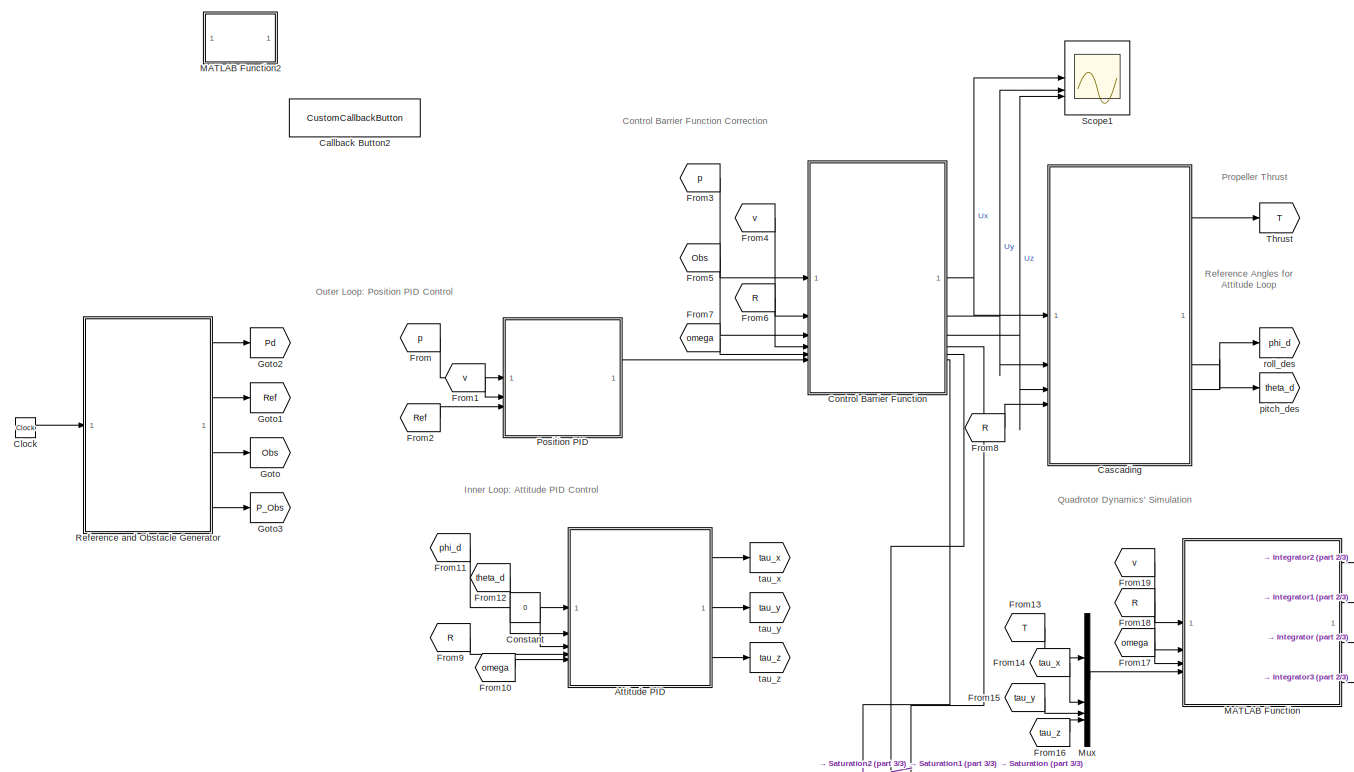
[diagram: root canvas - part 1/3, center side, full height]
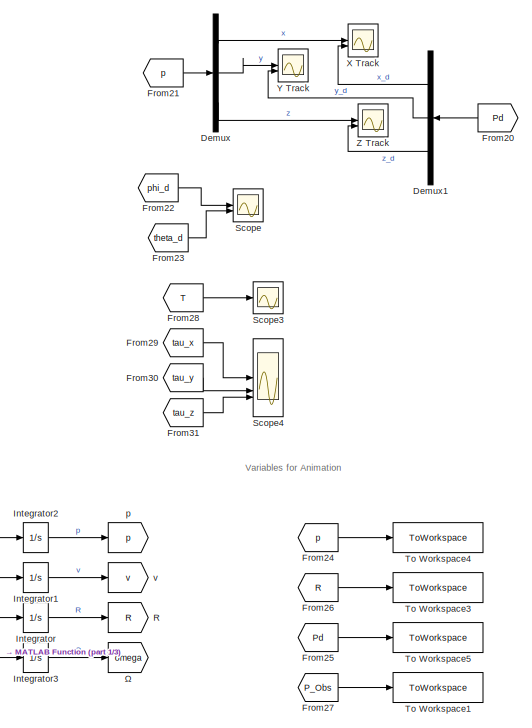
[diagram: root canvas - part 2/3, middle right region]
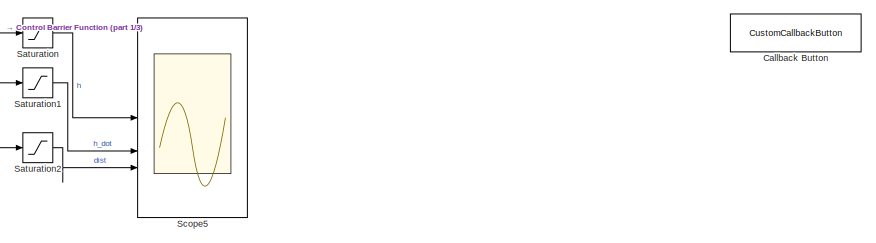
[diagram: root canvas - part 3/3, bottom right region]
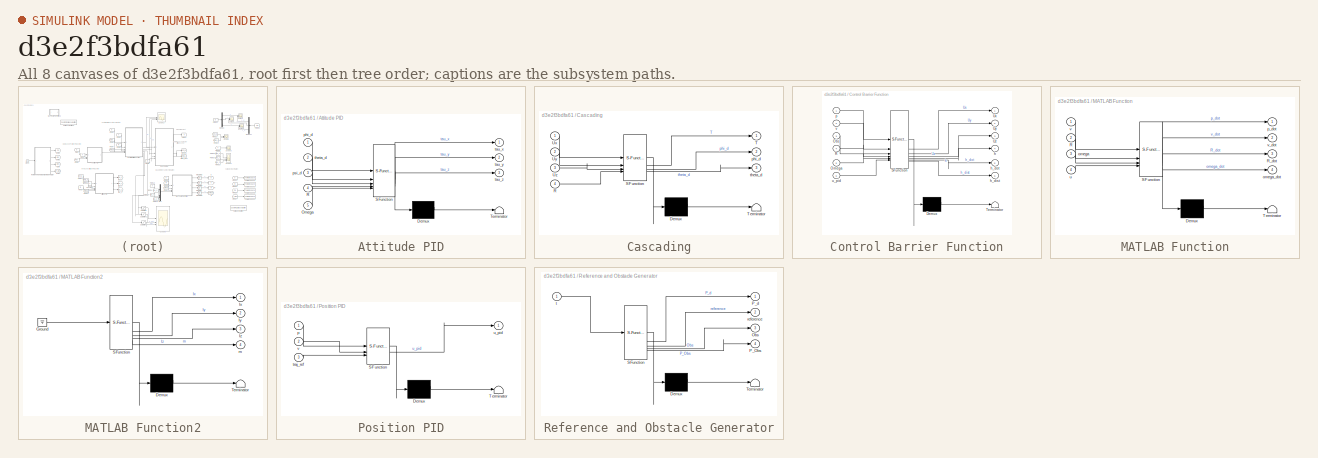
[diagram: thumbnail index - all 8 canvases of the model, root first then tree order]
MODEL slx_d3e2f3bdfa61
KIND model
CONFIG AbsTol = auto
CONFIG EnableMultiTasking = off
CONFIG FixedStep = auto
CONFIG MaxStep = auto
CONFIG MinStep = auto
CONFIG RelTol = 1e-3
CONFIG SampleTimeConstraint = Unconstrained
CONFIG SolverName = VariableStepAuto
CONFIG StartTime = 0.0
CONFIG StopTime = 40
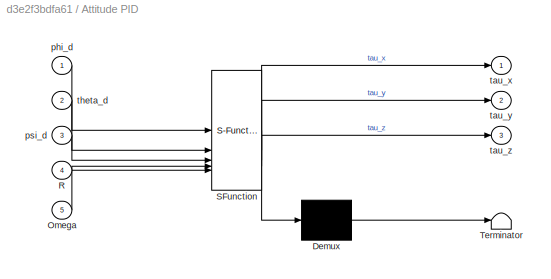
BLOCK [SubSystem] Attitude PID
  ErrorFcn = Stateflow.Translate.translate
  PermitHierarchicalResolution = ExplicitOnly
  SFBlockType = MATLAB Function
BLOCK [Demux] Attitude PID/ Demux 
  Outputs = 1
BLOCK [S-Function] Attitude PID/ SFunction 
  EnableBusSupport = on
  FunctionName = sf_sfun
  PortCounts = [5 4]
  SFcnIsStateOwnerBlock = off
  SFunctionDeploymentMode = off
  Tag = Stateflow S-Function 7
BLOCK [Terminator] Attitude PID/ Terminator 
BLOCK [Inport] Attitude PID/Omega
  Port = 5
BLOCK [Inport] Attitude PID/R
  Port = 4
BLOCK [Inport] Attitude PID/phi_d
BLOCK [Inport] Attitude PID/psi_d
  Port = 3
BLOCK [Outport] Attitude PID/tau_x
  VectorParamsAs1DForOutWhenUnconnected = off
BLOCK [Outport] Attitude PID/tau_y
  Port = 2
BLOCK [Outport] Attitude PID/tau_z
  Port = 3
BLOCK [Inport] Attitude PID/theta_d
  Port = 2
BLOCK [CustomCallbackButton] Callback Button
  Configuration = {"components":[{"name":"BackgroundImageComponent","settings":{"image":{"size":[0,0],"src":"default","srcOrientation":"Right"},"position":[0,0,1,1]}},{"name":"ButtonStateComponent","settings":{"buttonType":"momentary","clickFcn":"p0 = [10 0 0]';\nv0 = [-0.5 4.5 1]';\nR0 = eye(3);\n\nomega_0 = [0 0 0]';","onValue":1,"position":[0,0,1,1],"pressDelay":"500","pressFcn":"","repeatInterval":"0","states":...<+2132ch>
  CustomBackgroundColor = {"color":[0.9568627450980393,0.9568627450980393,0.9568627450980393],"show":true}
BLOCK [CustomCallbackButton] Callback Button2
  Configuration = {"components":[{"name":"BackgroundImageComponent","settings":{"image":{"size":[0,0],"src":"default","srcOrientation":"Right"},"position":[0,0,1,1]}},{"name":"ButtonStateComponent","settings":{"buttonType":"momentary","clickFcn":"p0 = [10 0 0]';\nv0 = [-0.5 4.5 1]';\nR0 = eye(3);\n\nomega_0 = [0 0 0]';","onValue":1,"position":[0,0,1,1],"pressDelay":"500","pressFcn":"","repeatInterval":"0","states":...<+2132ch>
  CustomBackgroundColor = {"color":[0.9568627450980393,0.9568627450980393,0.9568627450980393],"show":true}
BLOCK [SubSystem] Cascading
  ErrorFcn = Stateflow.Translate.translate
  PermitHierarchicalResolution = ExplicitOnly
  SFBlockType = MATLAB Function
  TreatAsAtomicUnit = on
BLOCK [Demux] Cascading/ Demux 
  Outputs = 1
BLOCK [S-Function] Cascading/ SFunction 
  EnableBusSupport = on
  FunctionName = sf_sfun
  PortCounts = [4 4]
  SFcnIsStateOwnerBlock = off
  SFunctionDeploymentMode = off
  Tag = Stateflow S-Function 6
BLOCK [Terminator] Cascading/ Terminator 
BLOCK [Inport] Cascading/R
  Port = 4
BLOCK [Outport] Cascading/T
BLOCK [Inport] Cascading/Ux
BLOCK [Inport] Cascading/Uy
  Port = 2
BLOCK [Inport] Cascading/Uz
  Port = 3
BLOCK [Outport] Cascading/phi_d
  Port = 2
BLOCK [Outport] Cascading/theta_d
  Port = 3
BLOCK [Clock] Clock
BLOCK [Constant] Constant
  Value = 0
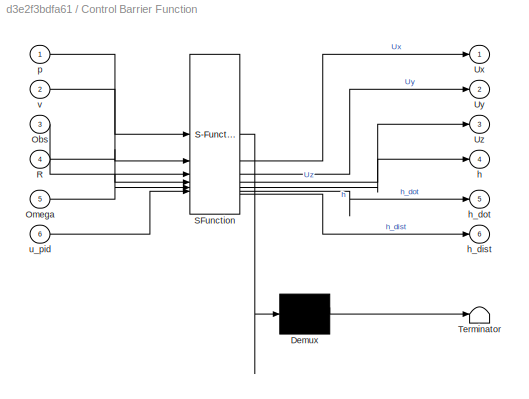
BLOCK [SubSystem] Control Barrier Function
  ErrorFcn = Stateflow.Translate.translate
  PermitHierarchicalResolution = ExplicitOnly
  SFBlockType = MATLAB Function
  TreatAsAtomicUnit = on
BLOCK [Demux] Control Barrier Function/ Demux 
  Outputs = 1
BLOCK [S-Function] Control Barrier Function/ SFunction 
  EnableBusSupport = on
  FunctionName = sf_sfun
  PortCounts = [6 7]
  SFcnIsStateOwnerBlock = off
  SFunctionDeploymentMode = off
  Tag = Stateflow S-Function 5
BLOCK [Terminator] Control Barrier Function/ Terminator 
BLOCK [Inport] Control Barrier Function/Obs
  Port = 3
BLOCK [Inport] Control Barrier Function/Omega
  Port = 5
BLOCK [Inport] Control Barrier Function/R
  Port = 4
BLOCK [Outport] Control Barrier Function/Ux
BLOCK [Outport] Control Barrier Function/Uy
  Port = 2
BLOCK [Outport] Control Barrier Function/Uz
  Port = 3
BLOCK [Outport] Control Barrier Function/h
  Port = 4
BLOCK [Outport] Control Barrier Function/h_dist
  Port = 6
BLOCK [Outport] Control Barrier Function/h_dot
  Port = 5
BLOCK [Inport] Control Barrier Function/p
BLOCK [Inport] Control Barrier Function/u_pid
  Port = 6
BLOCK [Inport] Control Barrier Function/v
  Port = 2
BLOCK [Demux] Demux
  Outputs = 3
BLOCK [Demux] Demux1
  Outputs = 3
BLOCK [From] From
  GotoTag = p
  TagVisibility = global
BLOCK [From] From1
  GotoTag = v
  TagVisibility = global
BLOCK [From] From10
  GotoTag = omega
  TagVisibility = global
BLOCK [From] From11
  GotoTag = phi_d
  TagVisibility = global
BLOCK [From] From12
  GotoTag = theta_d
  TagVisibility = global
BLOCK [From] From13
  GotoTag = T
  TagVisibility = global
BLOCK [From] From14
  GotoTag = tau_x
  TagVisibility = global
BLOCK [From] From15
  GotoTag = tau_y
  TagVisibility = global
BLOCK [From] From16
  GotoTag = tau_z
  TagVisibility = global
BLOCK [From] From17
  GotoTag = omega
  TagVisibility = global
BLOCK [From] From18
  GotoTag = R
  TagVisibility = global
BLOCK [From] From19
  GotoTag = v
  TagVisibility = global
BLOCK [From] From2
  GotoTag = Ref
  TagVisibility = global
BLOCK [From] From20
  GotoTag = Pd
  TagVisibility = global
BLOCK [From] From21
  GotoTag = p
  TagVisibility = global
BLOCK [From] From22
  GotoTag = phi_d
  TagVisibility = global
BLOCK [From] From23
  GotoTag = theta_d
  TagVisibility = global
BLOCK [From] From24
  GotoTag = p
  TagVisibility = global
BLOCK [From] From25
  GotoTag = Pd
  TagVisibility = global
BLOCK [From] From26
  GotoTag = R
  TagVisibility = global
BLOCK [From] From27
  GotoTag = P_Obs
  TagVisibility = global
BLOCK [From] From28
  GotoTag = T
  TagVisibility = global
BLOCK [From] From29
  GotoTag = tau_x
  TagVisibility = global
BLOCK [From] From3
  GotoTag = p
  TagVisibility = global
BLOCK [From] From30
  GotoTag = tau_y
  TagVisibility = global
BLOCK [From] From31
  GotoTag = tau_z
  TagVisibility = global
BLOCK [From] From4
  GotoTag = v
  TagVisibility = global
BLOCK [From] From5
  GotoTag = Obs
  TagVisibility = global
BLOCK [From] From6
  GotoTag = R
  TagVisibility = global
BLOCK [From] From7
  GotoTag = omega
  TagVisibility = global
BLOCK [From] From8
  GotoTag = R
  TagVisibility = global
BLOCK [From] From9
  GotoTag = R
  TagVisibility = global
BLOCK [Goto] Goto
  GotoTag = Obs
  TagVisibility = global
BLOCK [Goto] Goto1
  GotoTag = Ref
  TagVisibility = global
BLOCK [Goto] Goto2
  GotoTag = Pd
  TagVisibility = global
BLOCK [Goto] Goto3
  GotoTag = P_Obs
  TagVisibility = global
BLOCK [Integrator] Integrator
  InitialCondition = R0
BLOCK [Integrator] Integrator1
  InitialCondition = v0
BLOCK [Integrator] Integrator2
  InitialCondition = p0
BLOCK [Integrator] Integrator3
  InitialCondition = omega_0
BLOCK [SubSystem] MATLAB Function
  ErrorFcn = Stateflow.Translate.translate
  PermitHierarchicalResolution = ExplicitOnly
  SFBlockType = MATLAB Function
  TreatAsAtomicUnit = on
BLOCK [Demux] MATLAB Function/ Demux 
  Outputs = 1
BLOCK [S-Function] MATLAB Function/ SFunction 
  EnableBusSupport = on
  FunctionName = sf_sfun
  PortCounts = [4 5]
  SFcnIsStateOwnerBlock = off
  SFunctionDeploymentMode = off
  Tag = Stateflow S-Function 2
BLOCK [Terminator] MATLAB Function/ Terminator 
BLOCK [Inport] MATLAB Function/R
  Port = 2
BLOCK [Outport] MATLAB Function/R_dot
  Port = 3
BLOCK [Inport] MATLAB Function/omega
  Port = 3
BLOCK [Outport] MATLAB Function/omega_dot
  Port = 4
BLOCK [Outport] MATLAB Function/p_dot
BLOCK [Inport] MATLAB Function/u
  Port = 4
BLOCK [Inport] MATLAB Function/v
BLOCK [Outport] MATLAB Function/v_dot
  Port = 2
BLOCK [SubSystem] MATLAB Function2
  ErrorFcn = Stateflow.Translate.translate
  PermitHierarchicalResolution = ExplicitOnly
  SFBlockType = MATLAB Function
  TreatAsAtomicUnit = on
BLOCK [Demux] MATLAB Function2/ Demux 
  Outputs = 1
BLOCK [Ground] MATLAB Function2/ Ground 
BLOCK [S-Function] MATLAB Function2/ SFunction 
  EnableBusSupport = on
  FunctionName = sf_sfun
  PortCounts = [1 5]
  SFcnIsStateOwnerBlock = off
  SFunctionDeploymentMode = off
  Tag = Stateflow S-Function 9
BLOCK [Terminator] MATLAB Function2/ Terminator 
BLOCK [Outport] MATLAB Function2/Ix
BLOCK [Outport] MATLAB Function2/Iy
  Port = 2
BLOCK [Outport] MATLAB Function2/Iz
  Port = 3
BLOCK [Outport] MATLAB Function2/m
  Port = 4
BLOCK [Mux] Mux
  DisplayOption = bar
BLOCK [SubSystem] Position PID
  ErrorFcn = Stateflow.Translate.translate
  PermitHierarchicalResolution = ExplicitOnly
  SFBlockType = MATLAB Function
BLOCK [Demux] Position PID/ Demux 
  Outputs = 1
BLOCK [S-Function] Position PID/ SFunction 
  EnableBusSupport = on
  FunctionName = sf_sfun
  PortCounts = [3 2]
  SFcnIsStateOwnerBlock = off
  SFunctionDeploymentMode = off
  Tag = Stateflow S-Function 4
BLOCK [Terminator] Position PID/ Terminator 
BLOCK [Inport] Position PID/p
BLOCK [Inport] Position PID/traj_ref
  Port = 3
BLOCK [Outport] Position PID/u_pid
  VectorParamsAs1DForOutWhenUnconnected = off
BLOCK [Inport] Position PID/v
  Port = 2
BLOCK [Goto] R
  GotoTag = R
  NameLocation = right
  TagVisibility = global
BLOCK [SubSystem] Reference and Obstacle Generator
  ErrorFcn = Stateflow.Translate.translate
  PermitHierarchicalResolution = ExplicitOnly
  SFBlockType = MATLAB Function
  TreatAsAtomicUnit = on
BLOCK [Demux] Reference and Obstacle Generator/ Demux 
  Outputs = 1
BLOCK [S-Function] Reference and Obstacle Generator/ SFunction 
  EnableBusSupport = on
  FunctionName = sf_sfun
  PortCounts = [1 5]
  SFcnIsStateOwnerBlock = off
  SFunctionDeploymentMode = off
  Tag = Stateflow S-Function 8
BLOCK [Terminator] Reference and Obstacle Generator/ Terminator 
BLOCK [Outport] Reference and Obstacle Generator/Obs
  Port = 3
BLOCK [Outport] Reference and Obstacle Generator/P_Obs
  Port = 4
BLOCK [Outport] Reference and Obstacle Generator/P_d
BLOCK [Outport] Reference and Obstacle Generator/reference
  Port = 2
BLOCK [Inport] Reference and Obstacle Generator/t
BLOCK [Saturate] Saturation
  LowerLimit = -10
  UpperLimit = 10
BLOCK [Saturate] Saturation1
  LowerLimit = -10
  UpperLimit = 10
BLOCK [Saturate] Saturation2
  LowerLimit = -10
  UpperLimit = 10
BLOCK [Scope] Scope
  Floating = off
  NumInputPorts = 2
  ScopeSpecificationString = Simulink.scopes.TimeScopeBlockCfg('CurrentConfiguration', extmgr.ConfigurationSet(extmgr.Configuration('Core','General UI',true),extmgr.Configuration('Core','Source UI',true),extmgr.Configuration('Sources','WiredSimulink',true,'DataLoggingVariableName','ScopeData3'),extmgr.Configuration('Visuals','Time Domain',true,'SerializedDisplays',{struct('MinYLimReal','-56.25','MaxYLimReal','56.25','YLabelRe...<+1453ch>
BLOCK [Scope] Scope1
  Floating = off
  NumInputPorts = 3
  ScopeSpecificationString = Simulink.scopes.TimeScopeBlockCfg('CurrentConfiguration', extmgr.ConfigurationSet(extmgr.Configuration('Core','General UI',true),extmgr.Configuration('Core','Source UI',true),extmgr.Configuration('Sources','WiredSimulink',true,'DataLoggingVariableName','ScopeData4'),extmgr.Configuration('Visuals','Time Domain',true,'SerializedDisplays',{struct('MinYLimReal','-57.65454','MaxYLimReal','27.44547','YL...<+1520ch>
BLOCK [Scope] Scope3
  Floating = off
  NumInputPorts = 1
  ScopeSpecificationString = Simulink.scopes.TimeScopeBlockCfg('CurrentConfiguration', extmgr.ConfigurationSet(extmgr.Configuration('Core','General UI',true),extmgr.Configuration('Core','Source UI',true),extmgr.Configuration('Sources','WiredSimulink',true,'DataLoggingVariableName','ScopeData6'),extmgr.Configuration('Visuals','Time Domain',true,'SerializedDisplays',{struct('MinYLimReal','-1.02856','MaxYLimReal','1.12145','YLab...<+1470ch>
BLOCK [Scope] Scope4
  Floating = off
  NumInputPorts = 3
  ScopeSpecificationString = Simulink.scopes.TimeScopeBlockCfg('CurrentConfiguration', extmgr.ConfigurationSet(extmgr.Configuration('Core','General UI',true),extmgr.Configuration('Core','Source UI',true),extmgr.Configuration('Sources','WiredSimulink',true,'DataLoggingVariableName','ScopeData7'),extmgr.Configuration('Visuals','Time Domain',true,'SerializedDisplays',{struct('MinYLimReal','-0.00325','MaxYLimReal','0.00228','YLab...<+1475ch>
BLOCK [Scope] Scope5
  Floating = off
  NumInputPorts = 3
  ScopeSpecificationString = Simulink.scopes.TimeScopeBlockCfg('CurrentConfiguration', extmgr.ConfigurationSet(extmgr.Configuration('Core','General UI',true),extmgr.Configuration('Core','Source UI',true),extmgr.Configuration('Sources','WiredSimulink',true,'DataLoggingVariableName','ScopeData1'),extmgr.Configuration('Visuals','Time Domain',true,'SerializedDisplays',{struct('MinYLimReal','-1.68719','MaxYLimReal','0.1027','YLabe...<+1479ch>
BLOCK [Goto] Thrust
  GotoTag = T
  NameLocation = right
  TagVisibility = global
BLOCK [ToWorkspace] To Workspace1
  FixptAsFi = on
  MaxDataPoints = inf
  SampleTime = 0.1
  SaveFormat = Structure With Time
  VariableName = Obstacles
BLOCK [ToWorkspace] To Workspace3
  FixptAsFi = on
  MaxDataPoints = inf
  SampleTime = 0.1
  SaveFormat = Structure With Time
  VariableName = Attitude
BLOCK [ToWorkspace] To Workspace4
  FixptAsFi = on
  MaxDataPoints = inf
  SampleTime = 0.1
  SaveFormat = Structure With Time
  VariableName = Position
BLOCK [ToWorkspace] To Workspace5
  FixptAsFi = on
  MaxDataPoints = inf
  SampleTime = 0.1
  SaveFormat = Structure With Time
  VariableName = Reference
BLOCK [Scope] X Track
  Floating = off
  NumInputPorts = 2
  ScopeSpecificationString = Simulink.scopes.TimeScopeBlockCfg('CurrentConfiguration', extmgr.ConfigurationSet(extmgr.Configuration('Core','General UI',true),extmgr.Configuration('Core','Source UI',true),extmgr.Configuration('Sources','WiredSimulink',true),extmgr.Configuration('Visuals','Time Domain',true,'SerializedDisplays',{struct('MinYLimReal','-13.19494','MaxYLimReal','13.36898','YLabelReal','','MinYLimMag','0.00000','Ma...<+1449ch>
BLOCK [Scope] Y Track
  Floating = off
  NumInputPorts = 2
  ScopeSpecificationString = Simulink.scopes.TimeScopeBlockCfg('CurrentConfiguration', extmgr.ConfigurationSet(extmgr.Configuration('Core','General UI',true),extmgr.Configuration('Core','Source UI',true),extmgr.Configuration('Sources','WiredSimulink',true,'DataLoggingVariableName','ScopeData1'),extmgr.Configuration('Visuals','Time Domain',true,'SerializedDisplays',{struct('MinYLimReal','-41.35745','MaxYLimReal','372.21702','Y...<+1463ch>
BLOCK [Scope] Z Track
  Floating = off
  NumInputPorts = 2
  ScopeSpecificationString = Simulink.scopes.TimeScopeBlockCfg('CurrentConfiguration', extmgr.ConfigurationSet(extmgr.Configuration('Core','General UI',true),extmgr.Configuration('Core','Source UI',true),extmgr.Configuration('Sources','WiredSimulink',true,'DataLoggingVariableName','ScopeData2'),extmgr.Configuration('Visuals','Time Domain',true,'SerializedDisplays',{struct('MinYLimReal','-2.5','MaxYLimReal','22.5','YLabelReal'...<+1433ch>
BLOCK [Goto] p
  GotoTag = p
  NameLocation = right
  TagVisibility = global
BLOCK [Goto] pitch_des
  GotoTag = theta_d
  NameLocation = right
  TagVisibility = global
BLOCK [Goto] roll_des
  GotoTag = phi_d
  NameLocation = right
  TagVisibility = global
BLOCK [Goto] tau_x
  GotoTag = tau_x
  NameLocation = right
  TagVisibility = global
BLOCK [Goto] tau_y
  GotoTag = tau_y
  NameLocation = right
  TagVisibility = global
BLOCK [Goto] tau_z
  GotoTag = tau_z
  NameLocation = right
  TagVisibility = global
BLOCK [Goto] v
  GotoTag = v
  NameLocation = right
  TagVisibility = global
BLOCK [Goto] Ω
  GotoTag = omega
  IconDisplay = Signal name
  NameLocation = right
  TagVisibility = global
ANNOTATION (root): Propeller Thrust
ANNOTATION (root): Reference Angles for Attitude Loop
ANNOTATION (root): Control Barrier Function Correction
ANNOTATION (root): Inner Loop: Attitude PID Control
ANNOTATION (root): Outer Loop: Position PID Control
ANNOTATION (root): Quadrotor Dynamics' Simulation
ANNOTATION (root): Variables for Animation
LINE Attitude PID:1 -> tau_x:1
LINE Attitude PID:2 -> tau_y:1
LINE Attitude PID:3 -> tau_z:1
LINE Cascading:1 -> Thrust:1
LINE Cascading:2 -> roll_des:1
LINE Cascading:3 -> pitch_des:1
LINE Clock:1 -> Reference and Obstacle Generator:1
LINE Constant:1 -> Attitude PID:3
NET Control Barrier Function:1 -> Cascading:1, Scope1:1
NET Control Barrier Function:2 -> Cascading:2, Scope1:2
NET Control Barrier Function:3 -> Cascading:3, Scope1:3
LINE Control Barrier Function:4 -> Saturation:1
LINE Control Barrier Function:5 -> Saturation1:1
LINE Control Barrier Function:6 -> Saturation2:1
LINE Demux1:1 -> X Track:2
LINE Demux1:2 -> Y Track:2
LINE Demux1:3 -> Z Track:2
LINE Demux:1 -> X Track:1
LINE Demux:2 -> Y Track:1
LINE Demux:3 -> Z Track:1
LINE From10:1 -> Attitude PID:5
LINE From11:1 -> Attitude PID:1
LINE From12:1 -> Attitude PID:2
LINE From13:1 -> Mux:1
LINE From14:1 -> Mux:2
LINE From15:1 -> Mux:3
LINE From16:1 -> Mux:4
LINE From17:1 -> MATLAB Function:3
LINE From18:1 -> MATLAB Function:2
LINE From19:1 -> MATLAB Function:1
LINE From1:1 -> Position PID:2
LINE From20:1 -> Demux1:1
LINE From21:1 -> Demux:1
LINE From22:1 -> Scope:1
LINE From23:1 -> Scope:2
LINE From24:1 -> To Workspace4:1
LINE From25:1 -> To Workspace5:1
LINE From26:1 -> To Workspace3:1
LINE From27:1 -> To Workspace1:1
LINE From28:1 -> Scope3:1
LINE From29:1 -> Scope4:1
LINE From2:1 -> Position PID:3
LINE From30:1 -> Scope4:2
LINE From31:1 -> Scope4:3
LINE From3:1 -> Control Barrier Function:1
LINE From4:1 -> Control Barrier Function:2
LINE From5:1 -> Control Barrier Function:3
LINE From6:1 -> Control Barrier Function:4
LINE From7:1 -> Control Barrier Function:5
LINE From8:1 -> Cascading:4
LINE From9:1 -> Attitude PID:4
LINE From:1 -> Position PID:1
LINE Integrator1:1 -> v:1
LINE Integrator2:1 -> p:1
LINE Integrator3:1 -> Ω:1
LINE Integrator:1 -> R:1
LINE MATLAB Function:1 -> Integrator2:1
LINE MATLAB Function:2 -> Integrator1:1
LINE MATLAB Function:3 -> Integrator:1
LINE MATLAB Function:4 -> Integrator3:1
LINE Mux:1 -> MATLAB Function:4
LINE Position PID:1 -> Control Barrier Function:6
LINE Reference and Obstacle Generator:1 -> Goto2:1
LINE Reference and Obstacle Generator:2 -> Goto1:1
LINE Reference and Obstacle Generator:3 -> Goto:1
LINE Reference and Obstacle Generator:4 -> Goto3:1
LINE Saturation1:1 -> Scope5:2
LINE Saturation2:1 -> Scope5:3
LINE Saturation:1 -> Scope5:1
note: NET lines group one-source signal fan-out (src -> all destinations, sorted); 1:1 wires keep LINE
CHART MATLAB Function2 states=1 transitions=1
  STATE_LABEL 'eML_blk_kernel()'
  STATE_LABEL 'SCRIPT:\nfunction [Ix, Iy, Iz, m] = crazyflie_params()\nJ = [16.6e-6, 0.83e-6, 0.72e-6;\n      0.83e-6, 16.6e-6, 1.8e-6;\n      0.72e-6, 1.8e-6, 29.3e-6];\n\n%% APPROX\nIx = 16.6e-6;\nIy = 16.6e-6;\nIz =  29.3e-6;\n\nm = 0.027; % Kg\n'
CHART MATLAB Function states=1 transitions=1
  STATE_LABEL 'eML_blk_kernel()'
  STATE_LABEL "SCRIPT:\nfunction [p_dot, v_dot, R_dot, omega_dot]= drone(v,R,omega, u)\n\n% States\nwx = omega(1);\nwy = omega(2);\nwz = omega(3);\n\n% Inputs\nT = u(1);\nTau = u(2:4);\n\n% Parameters\nIx = 16.6e-6; % [kg*m^2]\nIy = 16.6e-6;\nIz =  29.3e-6;\n\nJ = diag([Ix Iy Iz]);\n%J = eye(3)*0.01;%diag([Ix Iy Iz]);\ng = 9.81;\nm = 0.027;\n\n\ne3 = [0 0 1]';\nS = [0 -wz wy; wz 0 -wx; -wy wx 0];\n\n% Gyroscopic effects\nwx_gyro = 0;\nwy_g...<+161ch>"
CHART Position PID states=1 transitions=1
  STATE_LABEL 'eML_blk_kernel()'
  STATE_LABEL 'SCRIPT:\nfunction u_pid  = Position_PID(p, v, traj_ref)\n%% Quadrotor model\n\n% Gravity\ng = 9.81;   % [ms^-2]\n\n%% PID CONTROLLER PARAMETERS\n%\nKx =0.1;    \nKvx = 0.54;\n\nKy = 0.1;\nKvy = 0.5;\n\nKz = 2;\nKvz = 3;\n\n\nKx = 1.5;    \nKvx = 2.5;\n\nKy = 1.5;\nKvy = 2.5;\n\nKz = 1.5;\nKvz = 2.5;\n\n%{\nKx = 0.375;    \nKvx = 1.25;\n\nKy = 0.375;\nKvy = 1.25;\n\nKz = 0.375;\nKvz = 1.25;\n%}\n%% State\n\n% Position\nx = p(1);\ny = p(2);...<+467ch>'
CHART Control Barrier Function states=1 transitions=1
  STATE_LABEL 'eML_blk_kernel()'
  STATE_LABEL "SCRIPT:\nfunction [Ux, Uy, Uz,h, h_dot, h_dist] = CBF(p,v,Obs,R,Omega,u_pid)\n%% _____ CBF _____\n\nM = diag([1/2^2 1/2^2 1/1^2]);\ndelta = 1.0;\nr = 2;\nmu = 0.02;\n\n%% Obstacles\nn_Obs = size(Obs,1)/3;\nP_Obs = Obs(1:n_Obs,:)';\ndP_Obs = Obs(n_Obs+1:2*n_Obs,:)';\nddP_Obs = Obs(2*n_Obs+1:3*n_Obs,:)';\n\n%% Find Closest Obstacle\nD_Matrix = p - P_Obs;\nD_vec = diag(D_Matrix'*D_Matrix);\n\n[~, D_index] = min(D_vec);...<+1013ch>"
CHART Cascading states=1 transitions=1
  STATE_LABEL 'eML_blk_kernel()'
  STATE_LABEL "SCRIPT:\nfunction [T, phi_d, theta_d] = cascading(Ux,Uy,Uz, R)\n% Gravity\ng = 9.81;\n\n% Mass\nm = 0.027;\n\n% Attitude Euler\neul_angles = rotm2eul(R,'XYZ');\nphi = eul_angles(1); \ntheta = eul_angles(2);  \npsi = eul_angles(3); \n\n% Thrust Computation\nT = (g + Uz)* ( m/( cos(phi)*cos(theta) ));\n\n%desired attitude from desired thrust direction\ntheta_d = atan2(Ux*cos(psi) + Uy*sin(psi), (Uz+g));\ntheta_d = rad...<+242ch>"
CHART Attitude PID states=1 transitions=1
  STATE_LABEL 'eML_blk_kernel()'
  STATE_LABEL 'SCRIPT:\nfunction [tau_x, tau_y, tau_z]  = Attitude_PID(phi_d, theta_d, psi_d, R, Omega)\n%% Drone Parameters\nIx = 16.6e-6; % [kg*m^2]\nIy = 16.6e-6;\nIz =  29.3e-6;\n\n%% State\neul_angles = rad2deg(rotm2eul(R, "XYZ"));\n\nphi = eul_angles(1); \ntheta = eul_angles(2);  \npsi = eul_angles(3); \n\nwx = rad2deg(Omega(1));\nwy = rad2deg(Omega(2));\nwz = rad2deg(Omega(3));\n\n%% PID Gains\nK_phi = 120;\nK_wx = 22;\n\nK_th...<+238ch>'
CHART Reference and Obstacle Generator states=1 transitions=1
  STATE_LABEL 'eML_blk_kernel()'
  STATE_LABEL "SCRIPT:\nfunction [P_d, reference, Obs, P_Obs] = generate(t)\n%{\nw = 0.5;\nR = 10;\n\nx_d = R*cos(w*t);\ny_d = R*sin(w*t);\nz_d = w*t;\n\nvx_d = -w*R*sin(w*t);\nvy_d = w*R*cos(w*t);\nvz_d = w;\n\nax_d = -w^2*R*cos(w*t);\nay_d = -w^2*R*sin(w*t);\naz_d = 0;\n\n%%%%  %%%%%%\nP_d = [x_d y_d z_d]';\ndP_d = [vx_d vy_d vz_d]';\nddP_d = [ax_d ay_d az_d]';\n\nreference = [P_d dP_d ddP_d];\n\nP_Obs = [0 R pi/2+0.2; -R 0 pi+0.2; R ...<+3608ch>"
CHART  states=0 transitions=0
CHART  states=0 transitions=0
CHART  states=0 transitions=0
CHART  states=0 transitions=0
CHART  states=0 transitions=0
CHART  states=0 transitions=0
CHART  states=0 transitions=0
